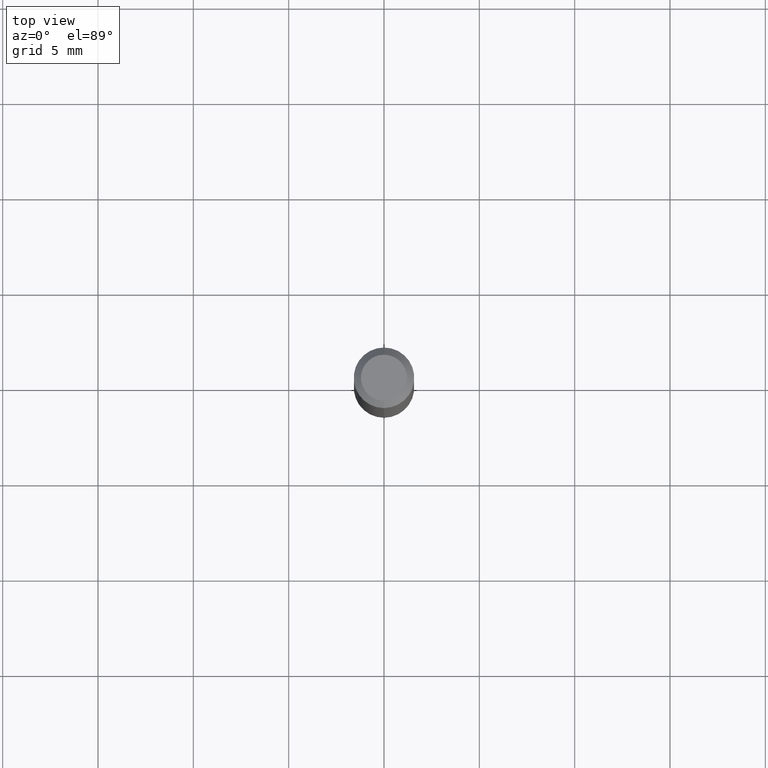
[diagram: clean part render]
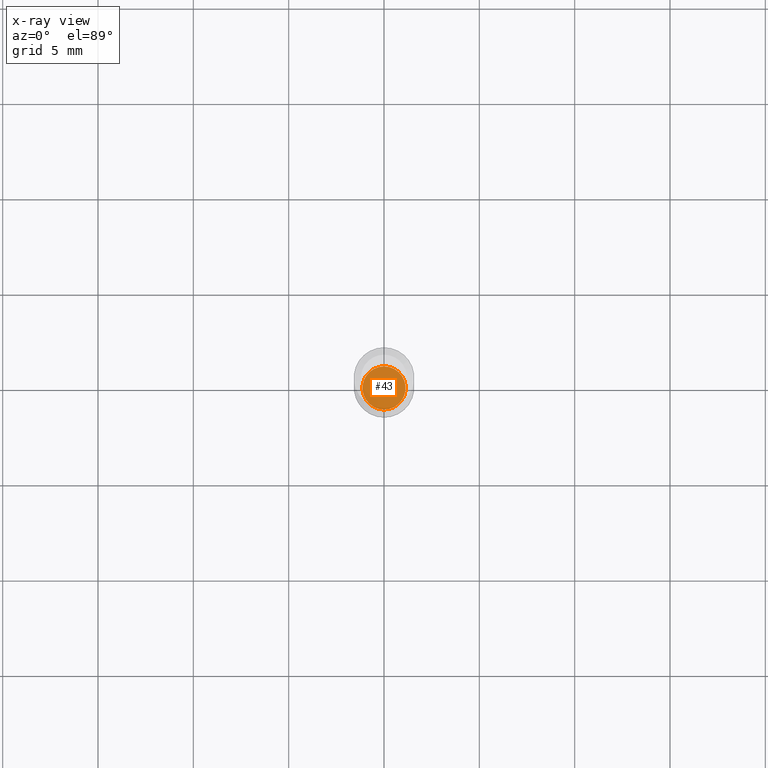
[diagram: x-ray — body ghosted, one internal face saturated and labeled with its STEP entity id]
A machine part, top view, then the same camera in x-ray: the body is ghosted and one INTERNAL B-rep face — a face not visible from any outside direction — is saturated and labeled: STEP entity #43.
In plain terms, the highlighted planar face has unit normal (-0, 0, 1).
Its self-contained STEP definition (entity closure, byte-faithful):
#43 = ADVANCED_FACE ( 'NONE', ( #489 ), #64, .F. ) ;
#64 = PLANE ( 'NONE',  #234 ) ;
#99 = CARTESIAN_POINT ( 'NONE',  ( 3.007947858688873947E-29, -4.294491648388684344E-15, -1.230000000000000204 ) ) ;
#129 = VERTEX_POINT ( 'NONE', #404 ) ;
#155 = DIRECTION ( 'NONE',  ( -2.445486063974693854E-29, 3.491456624706247087E-15, 1.000000000000000000 ) ) ;
#174 = ORIENTED_EDGE ( 'NONE', *, *, #221, .F. ) ;
#178 = DIRECTION ( 'NONE',  ( -6.982962677686265922E-15, -1.000000000000000000, 3.491456624706247087E-15 ) ) ;
#195 = DIRECTION ( 'NONE',  ( -6.982962677686265922E-15, -1.000000000000000000, 3.069492127712655324E-15 ) ) ;
#199 = CIRCLE ( 'NONE', #231, 0.04449999999999999789 ) ;
#221 = EDGE_CURVE ( 'NONE', #299, #129, #327, .T. ) ;
#231 = AXIS2_PLACEMENT_3D ( 'NONE', #473, #435, #195 ) ;
#234 = AXIS2_PLACEMENT_3D ( 'NONE', #99, #372, #178 ) ;
#297 = ORIENTED_EDGE ( 'NONE', *, *, #425, .F. ) ;
#299 = VERTEX_POINT ( 'NONE', #506 ) ;
#327 = CIRCLE ( 'NONE', #475, 0.04449999999999999789 ) ;
#367 = EDGE_LOOP ( 'NONE', ( #297, #174 ) ) ;
#372 = DIRECTION ( 'NONE',  ( -2.445486063974693573E-29, 3.491456624706247087E-15, 1.000000000000000000 ) ) ;
#404 = CARTESIAN_POINT ( 'NONE',  ( -3.107418391570087519E-16, -0.04450000000000429307, -1.229999999999999982 ) ) ;
#414 = CARTESIAN_POINT ( 'NONE',  ( 3.007947858688873947E-29, -4.294491648388684344E-15, -1.230000000000000204 ) ) ;
#419 = DIRECTION ( 'NONE',  ( -6.982962677686265922E-15, -1.000000000000000000, 3.069492127712655324E-15 ) ) ;
#425 = EDGE_CURVE ( 'NONE', #129, #299, #199, .T. ) ;
#435 = DIRECTION ( 'NONE',  ( -2.445486063974693854E-29, 3.491456624706247087E-15, 1.000000000000000000 ) ) ;
#473 = CARTESIAN_POINT ( 'NONE',  ( 3.007947858688873947E-29, -4.294491648388684344E-15, -1.230000000000000204 ) ) ;
#475 = AXIS2_PLACEMENT_3D ( 'NONE', #414, #155, #419 ) ;
#489 = FACE_OUTER_BOUND ( 'NONE', #367, .T. ) ;
#506 = CARTESIAN_POINT ( 'NONE',  ( 3.179678742526750430E-16, 0.04449999999999570272, -1.230000000000000204 ) ) ;